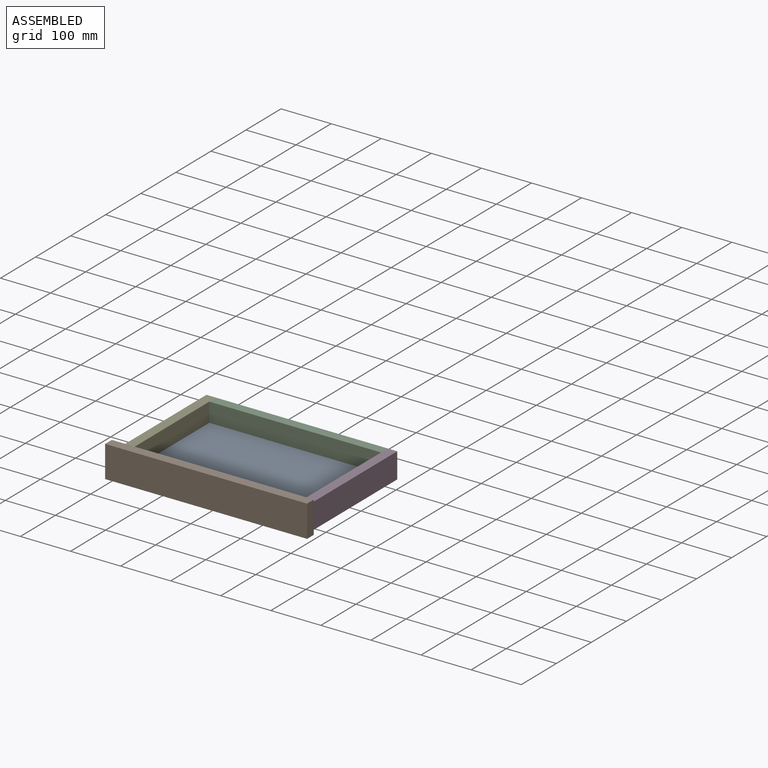
[diagram: assembled view]
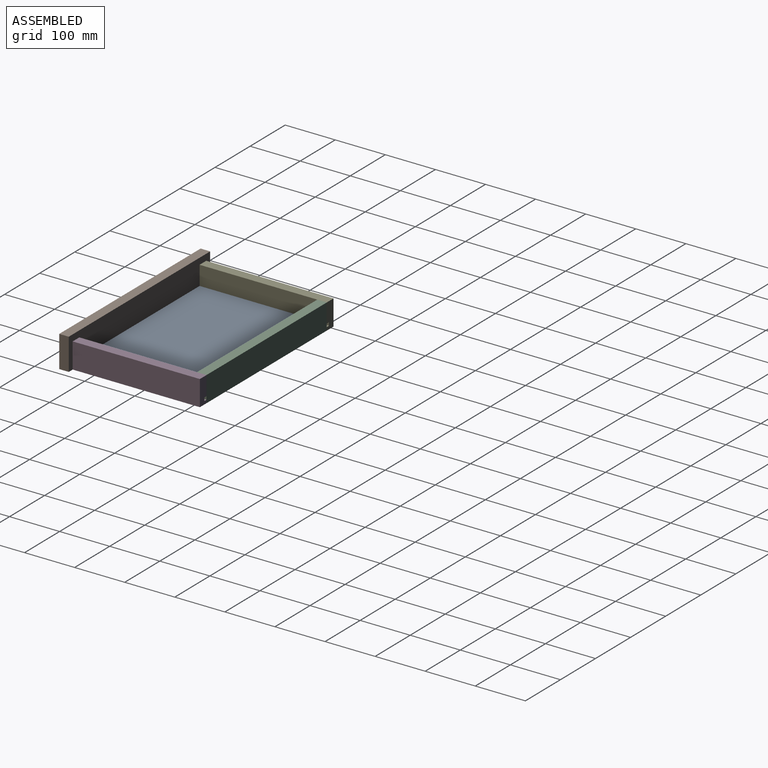
[diagram: assembled view, second angle]
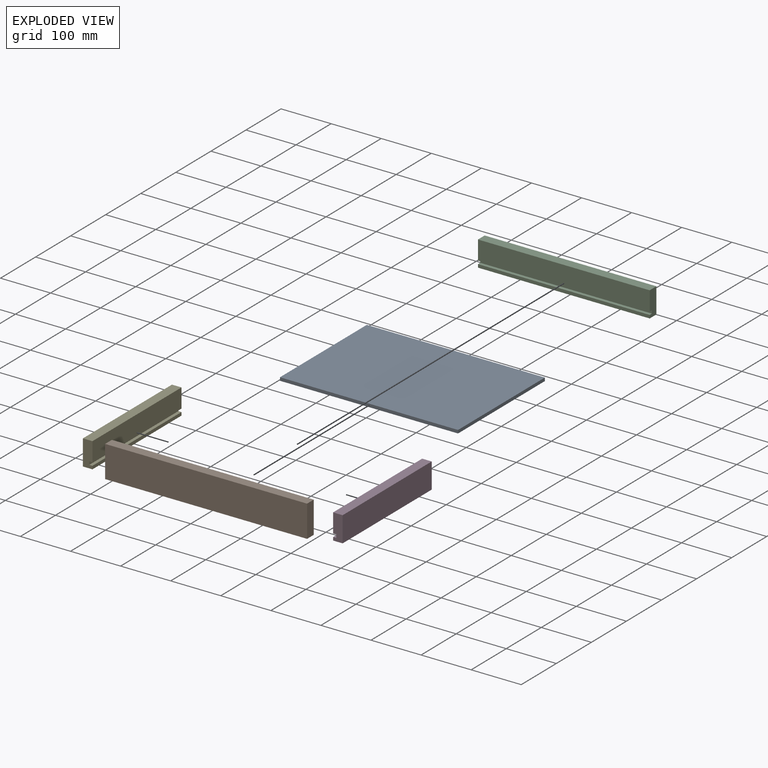
[diagram: exploded view]
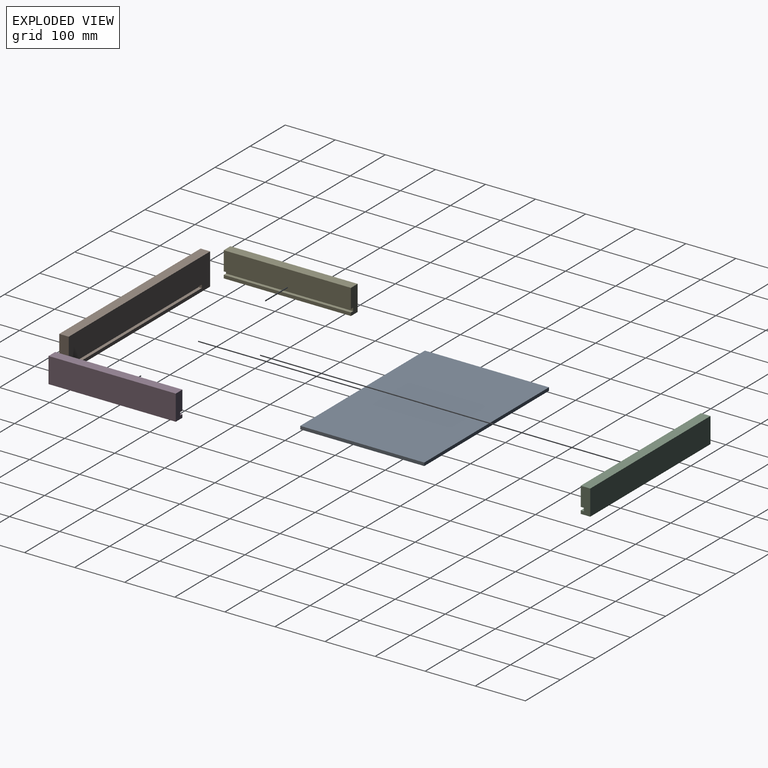
[diagram: exploded view, second angle]
ASSEMBLY  parts=5 mates=4
PART A: 6 faces, bbox 355.6x247.7x6.4 mm
  f0: plane 355.6x6.35mm, normal (0,-1,0), area 2258.1mm2, adj f1,f3,f4,f5
  f1: plane 247.65x6.35mm, normal (1,0,0), area 1572.6mm2, adj f0,f2,f4,f5
  f2: plane 355.6x6.35mm, normal (0,1,0), area 2258.1mm2, adj f1,f3,f4,f5
  f3: plane 247.65x6.35mm, normal (-1,0,0), area 1572.6mm2, adj f0,f2,f4,f5
  f4: plane 355.6x247.65mm, normal (0,0,1), area 88064.3mm2, adj f0,f1,f2,f3
  f5: plane 355.6x247.65mm, normal (0,0,-1), area 88064.3mm2, adj f0,f1,f2,f3
PART B: 11 faces, bbox 403.2x19.1x63.5 mm
  f0: plane 403.23x63.5mm, normal (0,1,0), area 23346.7mm2, adj f1,f2,f4,f5,f6,f7,f8,f9
  f1: plane 63.5x19.05mm, normal (1,0,0), area 1209.7mm2, adj f0,f3,f4,f5
  f2: plane 63.5x19.05mm, normal (-1,0,0), area 1209.7mm2, adj f0,f3,f4,f5
  f3: plane 403.23x63.5mm, normal (0,-1,0), area 25604.8mm2, adj f1,f2,f4,f5
  f4: plane 403.23x19.05mm, normal (0,0,1), area 7681.4mm2, adj f0,f1,f2,f3
  f5: plane 403.23x19.05mm, normal (0,0,-1), area 7681.4mm2, adj f0,f1,f2,f3
  f6: plane 6.35x6.35mm, normal (1,0,0), area 40.3mm2, adj f0,f7,f9,f10
  f7: plane 355.6x6.35mm, normal (0,0,-1), area 2258.1mm2, adj f0,f6,f8,f10
  f8: plane 6.35x6.35mm, normal (-1,0,0), area 40.3mm2, adj f0,f7,f9,f10
  f9: plane 355.6x6.35mm, normal (0,0,1), area 2258.1mm2, adj f0,f6,f8,f10
  f10: plane 355.6x6.35mm, normal (0,1,0), area 2258.1mm2, adj f6,f7,f8,f9
PART C: 10 faces, bbox 342.9x19.1x50.8 mm
  f0: plane 342.9x38.1mm, normal (0,-1,0), area 13064.5mm2, adj f1,f3,f6,f8
  f1: plane 50.8x19.05mm, normal (-1,0,0), area 927.4mm2, adj f0,f2,f4,f5,f6,f7,f8,f9
  f2: plane 342.9x6.35mm, normal (0,-1,0), area 2177.4mm2, adj f1,f3,f5,f7
  f3: plane 50.8x19.05mm, normal (1,0,0), area 927.4mm2, adj f0,f2,f4,f5,f6,f7,f8,f9
  f4: plane 342.9x50.8mm, normal (0,1,0), area 17419.3mm2, adj f1,f3,f5,f6
  f5: plane 342.9x19.05mm, normal (0,0,1), area 6532.2mm2, adj f1,f2,f3,f4
  f6: plane 342.9x19.05mm, normal (0,0,-1), area 6532.2mm2, adj f0,f1,f3,f4
  f7: plane 342.9x6.35mm, normal (0,0,-1), area 2177.4mm2, adj f1,f2,f3,f9
  f8: plane 342.9x6.35mm, normal (0,0,1), area 2177.4mm2, adj f0,f1,f3,f9
  f9: plane 342.9x6.35mm, normal (0,-1,0), area 2177.4mm2, adj f1,f3,f7,f8
PART D: 10 faces, bbox 19.1x254x50.8 mm
  f0: plane 254x6.35mm, normal (-1,0,0), area 1612.9mm2, adj f1,f3,f5,f7
  f1: plane 50.8x19.05mm, normal (0,-1,0), area 927.4mm2, adj f0,f2,f4,f5,f6,f7,f8,f9
  f2: plane 254x50.8mm, normal (1,0,0), area 12903.2mm2, adj f1,f3,f5,f6
  f3: plane 50.8x19.05mm, normal (0,1,0), area 927.4mm2, adj f0,f2,f4,f5,f6,f7,f8,f9
  f4: plane 254x38.1mm, normal (-1,0,0), area 9677.4mm2, adj f1,f3,f6,f8
  f5: plane 254x19.05mm, normal (0,0,1), area 4838.7mm2, adj f0,f1,f2,f3
  f6: plane 254x19.05mm, normal (0,0,-1), area 4838.7mm2, adj f1,f2,f3,f4
  f7: plane 254x6.35mm, normal (0,0,-1), area 1612.9mm2, adj f0,f1,f3,f9
  f8: plane 254x6.35mm, normal (0,0,1), area 1612.9mm2, adj f1,f3,f4,f9
  f9: plane 254x6.35mm, normal (-1,0,0), area 1612.9mm2, adj f1,f3,f7,f8
PART E: same geometry as D
PLACE A t=(1206.71,1150.59,-3.5)mm
PLACE B rot(axis=(0,1,0),180deg) t=(-1042.57,1233.71,53.65)mm
PLACE C rot(axis=(0,1,0),180deg) t=(-851.11,1141.49,40.95)mm
PLACE D rot(axis=(1,0,0),180deg) t=(767.32,-1214.27,40.95)mm
PLACE E rot(axis=(0,1,0),180deg) t=(-773.36,1202.83,40.95)mm
MATE fastened D.f9 <-> A.f1  axis (-1,0,0) through (174.78,-5.72,-0.32)mm
MATE fastened B.f10 <-> A.f0  axis (0,1,0) through (-180.82,-139.07,2.85)mm
MATE fastened E.f9 <-> A.f3  axis (1,0,0) through (-180.82,-5.72,-0.32)mm
MATE fastened C.f9 <-> A.f2  axis (0,-1,0) through (-3.02,108.58,-0.32)mm
